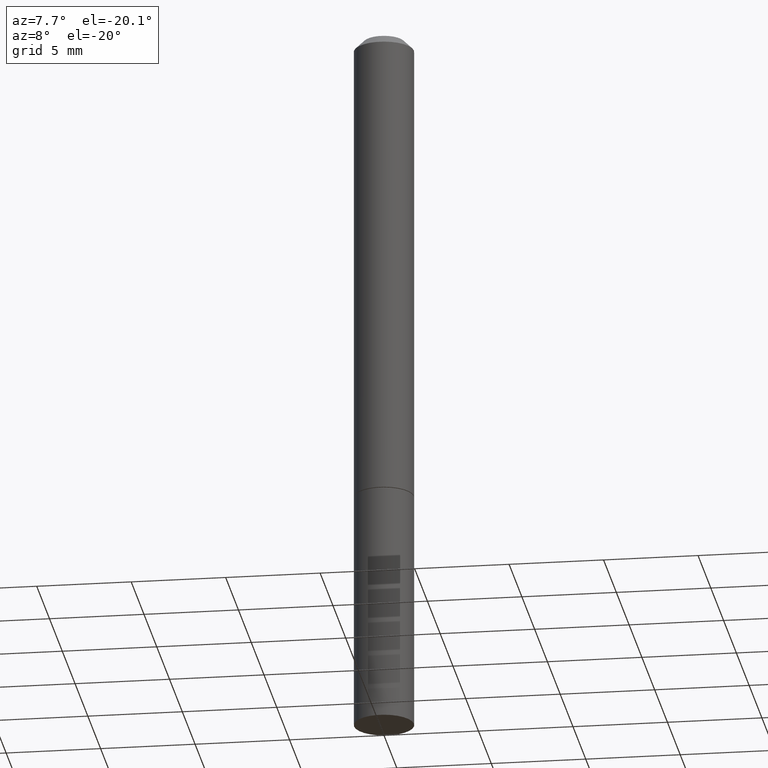
[diagram: clean part render]
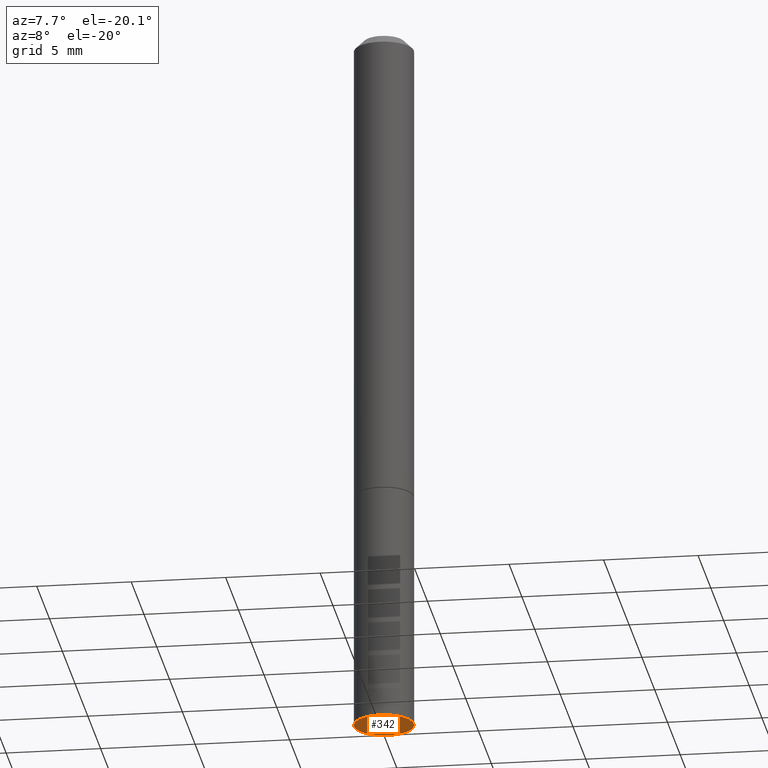
[diagram: same view with one face highlighted and labeled with its STEP entity id]
A machine part, auxiliary view. The second image highlights one B-rep face of the part: STEP entity #342.
In plain terms, the highlighted planar face has unit normal (0, -0, -1).
Its self-contained STEP definition (entity closure, byte-faithful):
#3 = DIRECTION ( 'NONE',  ( -1.000000000000000000, 6.982962677686265922E-15, -4.876176775795935793E-29 ) ) ;
#35 = CARTESIAN_POINT ( 'NONE',  ( 3.668203209277704895E-29, -5.237222008264718177E-15, -1.500000000000000222 ) ) ;
#44 = EDGE_LOOP ( 'NONE', ( #356, #104 ) ) ;
#57 = DIRECTION ( 'NONE',  ( 1.000000000000000000, -6.982962677686261189E-15, 0.000000000000000000 ) ) ;
#69 = AXIS2_PLACEMENT_3D ( 'NONE', #119, #312, #89 ) ;
#87 = DIRECTION ( 'NONE',  ( -2.445468806185136597E-29, 3.491481338843145583E-15, 1.000000000000000000 ) ) ;
#89 = DIRECTION ( 'NONE',  ( 1.000000000000000000, -6.982962677686261189E-15, 0.000000000000000000 ) ) ;
#104 = ORIENTED_EDGE ( 'NONE', *, *, #282, .F. ) ;
#119 = CARTESIAN_POINT ( 'NONE',  ( 3.668203209277704895E-29, -5.237222008264718177E-15, -1.500000000000000222 ) ) ;
#145 = AXIS2_PLACEMENT_3D ( 'NONE', #35, #87, #57 ) ;
#149 = DIRECTION ( 'NONE',  ( 2.438088387897960049E-29, -3.491481338843145188E-15, -1.000000000000000000 ) ) ;
#151 = CIRCLE ( 'NONE', #69, 0.06250000000000001388 ) ;
#173 = FACE_OUTER_BOUND ( 'NONE', #44, .T. ) ;
#179 = CARTESIAN_POINT ( 'NONE',  ( 0.06250000000000001388, -5.673657175620109846E-15, -1.500000000000000222 ) ) ;
#214 = VERTEX_POINT ( 'NONE', #336 ) ;
#232 = CARTESIAN_POINT ( 'NONE',  ( 4.364351673554284500E-16, 0.06249999999999478195, -1.500000000000000444 ) ) ;
#237 = EDGE_CURVE ( 'NONE', #269, #214, #151, .T. ) ;
#269 = VERTEX_POINT ( 'NONE', #179 ) ;
#282 = EDGE_CURVE ( 'NONE', #214, #269, #326, .T. ) ;
#312 = DIRECTION ( 'NONE',  ( -2.445468806185136597E-29, 3.491481338843145583E-15, 1.000000000000000000 ) ) ;
#317 = PLANE ( 'NONE',  #348 ) ;
#326 = CIRCLE ( 'NONE', #145, 0.06250000000000001388 ) ;
#336 = CARTESIAN_POINT ( 'NONE',  ( -0.06250000000000001388, -3.920262463703869855E-15, -1.500000000000000222 ) ) ;
#342 = ADVANCED_FACE ( 'NONE', ( #173 ), #317, .T. ) ;
#348 = AXIS2_PLACEMENT_3D ( 'NONE', #232, #149, #3 ) ;
#356 = ORIENTED_EDGE ( 'NONE', *, *, #237, .F. ) ;